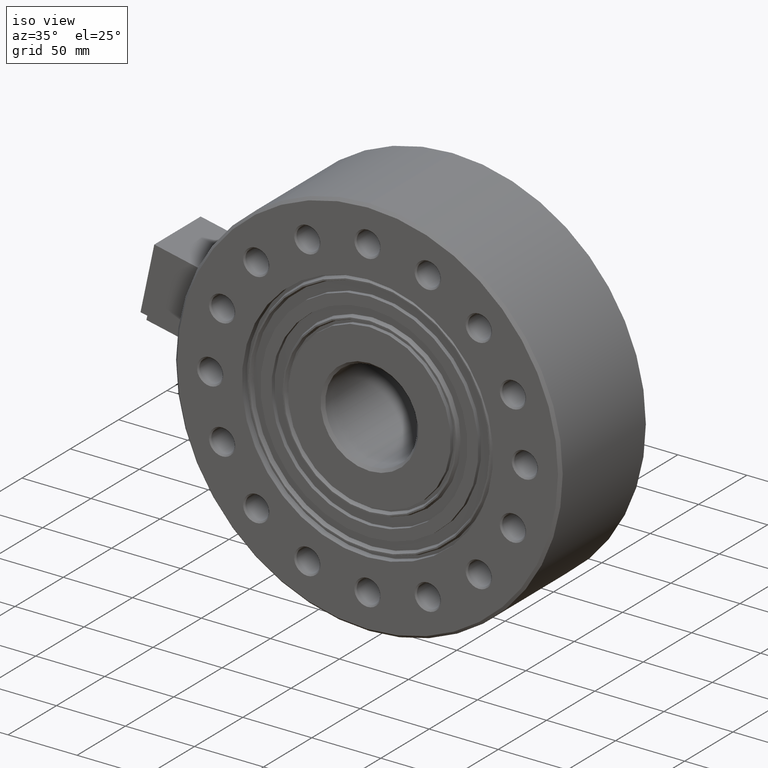
[diagram: clean part render]
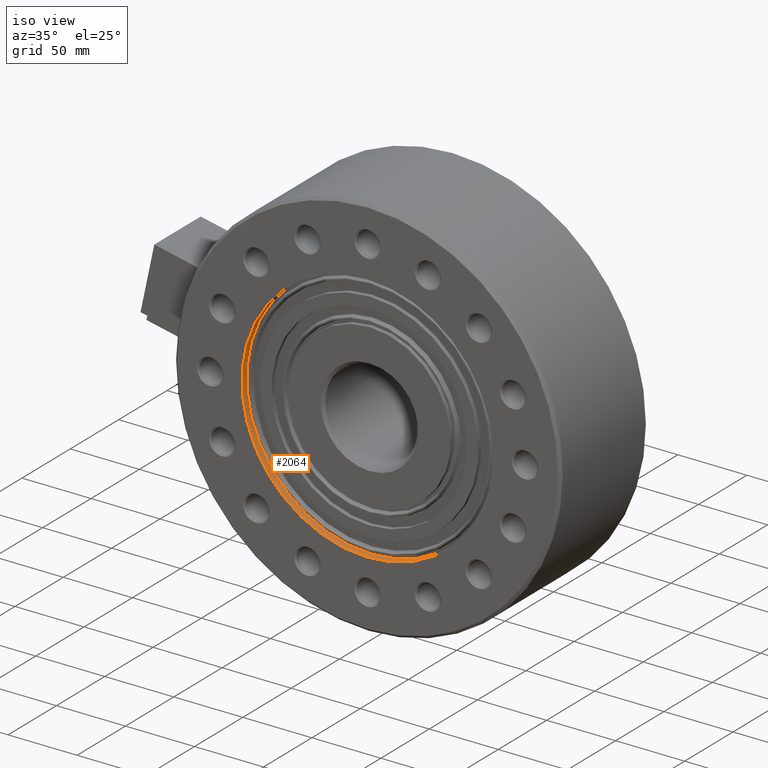
[diagram: same view with one face highlighted and labeled with its STEP entity id]
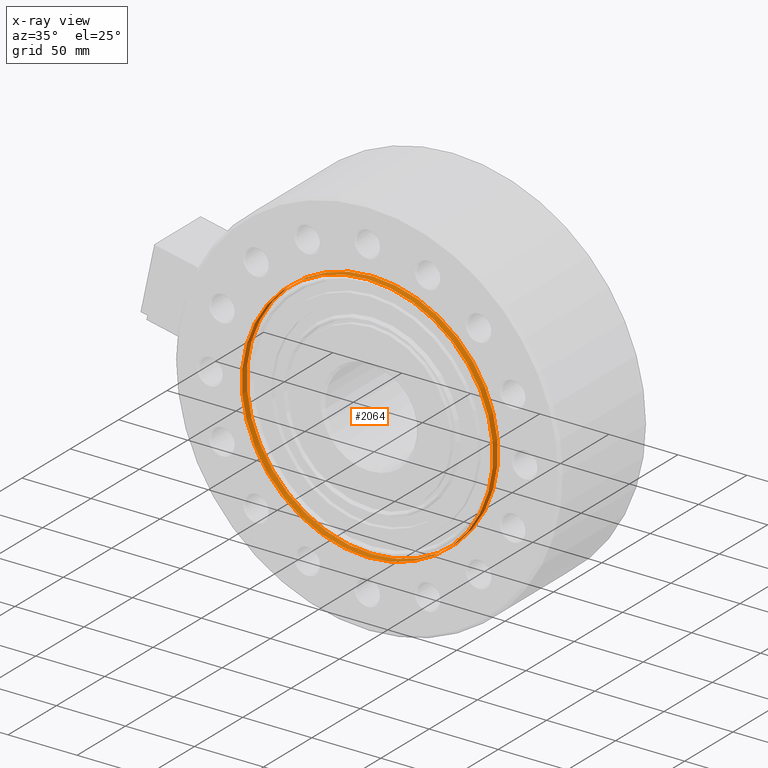
[diagram: x-ray of the same camera — body ghosted, the highlighted face saturated]
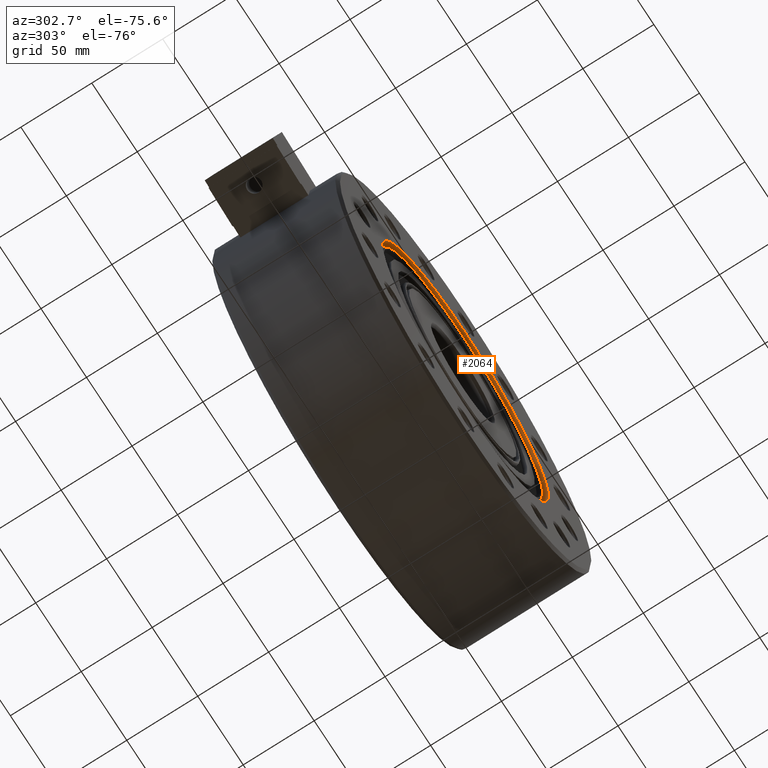
[diagram: same view with one face highlighted and labeled with its STEP entity id]
A machine part, iso view. The second image highlights one B-rep face of the part: STEP entity #2064.
The next image is the same camera in x-ray: the body ghosted, the highlighted face saturated — about 0% of this face is hidden behind the body in this view.
A second angle (auxiliary view) of the same face is appended — the face is thin or edge-on in the first view.
In plain terms, the highlighted cylindrical surface (bore or boss wall) has radius 91 mm, axis along (0, -1, 0).
Its self-contained STEP definition (entity closure, byte-faithful):
#118=CYLINDRICAL_SURFACE('',#2347,91.);
#183=FACE_OUTER_BOUND('',#284,.T.);
#284=EDGE_LOOP('',(#1689,#1690,#1691,#1692,#1693,#1694));
#437=LINE('',#3627,#536);
#536=VECTOR('',#2956,91.);
#744=CIRCLE('',#2348,91.);
#745=CIRCLE('',#2349,91.);
#746=CIRCLE('',#2350,91.);
#747=CIRCLE('',#2351,91.);
#958=VERTEX_POINT('',#3622);
#959=VERTEX_POINT('',#3623);
#960=VERTEX_POINT('',#3626);
#961=VERTEX_POINT('',#3628);
#1249=EDGE_CURVE('',#958,#959,#744,.T.);
#1250=EDGE_CURVE('',#959,#958,#745,.T.);
#1251=EDGE_CURVE('',#959,#960,#437,.T.);
#1252=EDGE_CURVE('',#960,#961,#746,.T.);
#1253=EDGE_CURVE('',#961,#960,#747,.T.);
#1689=ORIENTED_EDGE('',*,*,#1249,.F.);
#1690=ORIENTED_EDGE('',*,*,#1250,.F.);
#1691=ORIENTED_EDGE('',*,*,#1251,.T.);
#1692=ORIENTED_EDGE('',*,*,#1252,.T.);
#1693=ORIENTED_EDGE('',*,*,#1253,.T.);
#1694=ORIENTED_EDGE('',*,*,#1251,.F.);
#2064=ADVANCED_FACE('',(#183),#118,.F.);
#2347=AXIS2_PLACEMENT_3D('',#3621,#2950,#2951);
#2348=AXIS2_PLACEMENT_3D('',#3624,#2952,#2953);
#2349=AXIS2_PLACEMENT_3D('',#3625,#2954,#2955);
#2350=AXIS2_PLACEMENT_3D('',#3629,#2957,#2958);
#2351=AXIS2_PLACEMENT_3D('',#3630,#2959,#2960);
#2950=DIRECTION('center_axis',(0.,-1.,0.));
#2951=DIRECTION('ref_axis',(0.,0.,-1.));
#2952=DIRECTION('center_axis',(0.,-1.,0.));
#2953=DIRECTION('ref_axis',(0.,0.,-1.));
#2954=DIRECTION('center_axis',(0.,-1.,0.));
#2955=DIRECTION('ref_axis',(0.,0.,-1.));
#2956=DIRECTION('',(0.,-1.,0.));
#2957=DIRECTION('center_axis',(0.,-1.,0.));
#2958=DIRECTION('ref_axis',(0.,0.,-1.));
#2959=DIRECTION('center_axis',(0.,-1.,0.));
#2960=DIRECTION('ref_axis',(0.,0.,-1.));
#3621=CARTESIAN_POINT('Origin',(-1.58897922189369E-14,-19.,0.));
#3622=CARTESIAN_POINT('',(-1.58897922189369E-14,-16.,-91.));
#3623=CARTESIAN_POINT('',(-2.70340780911778E-14,-16.,91.));
#3624=CARTESIAN_POINT('Origin',(-1.58897922189369E-14,-16.,0.));
#3625=CARTESIAN_POINT('Origin',(-1.58897922189369E-14,-16.,0.));
#3626=CARTESIAN_POINT('',(-2.70340780911778E-14,-21.,91.));
#3627=CARTESIAN_POINT('',(-2.70340780911778E-14,-19.,91.));
#3628=CARTESIAN_POINT('',(-1.58897922189369E-14,-21.,-91.));
#3629=CARTESIAN_POINT('Origin',(-1.58897922189369E-14,-21.,0.));
#3630=CARTESIAN_POINT('Origin',(-1.58897922189369E-14,-21.,0.));